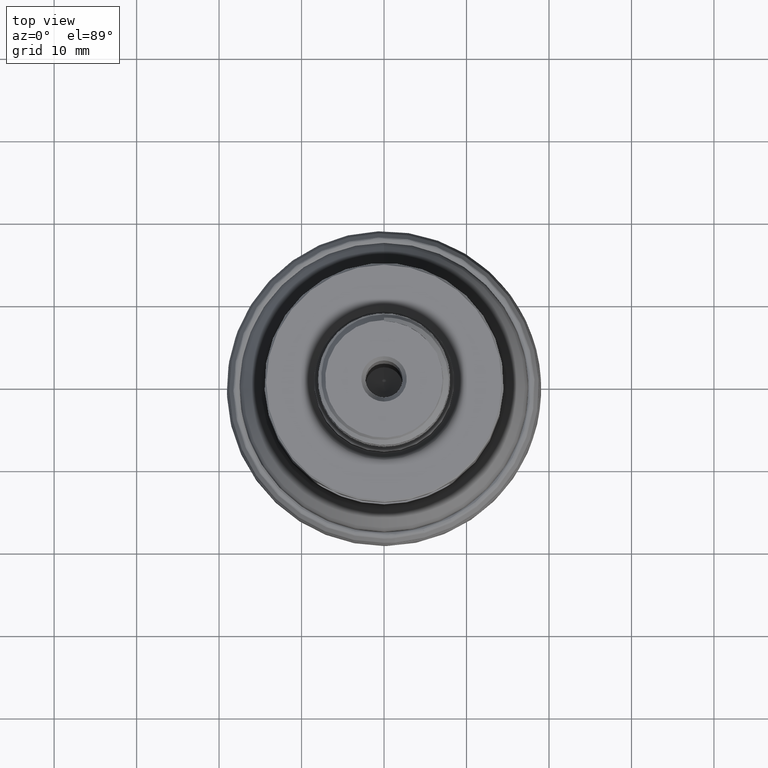
[diagram: clean part render]
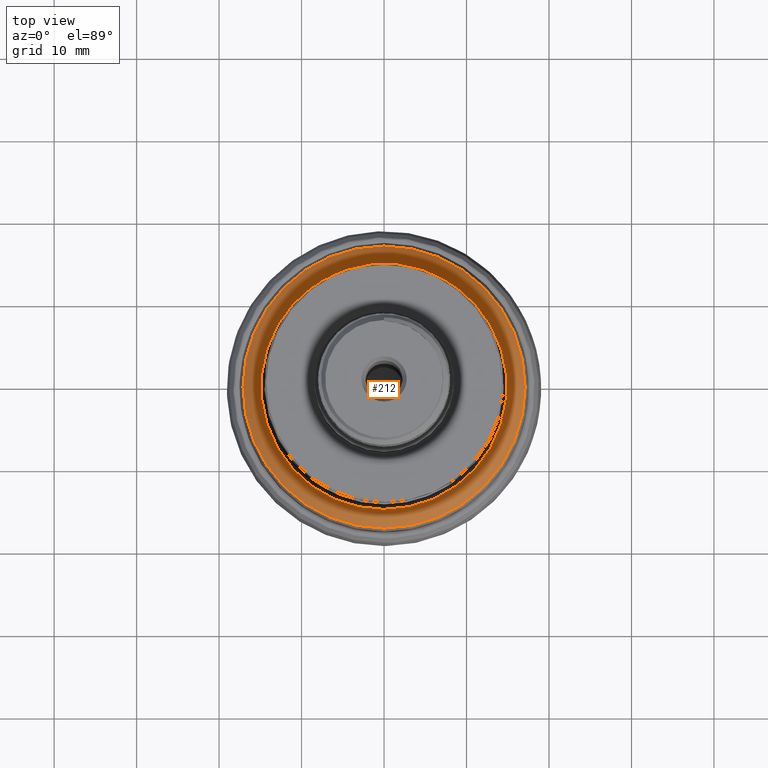
[diagram: same view with one face highlighted and labeled with its STEP entity id]
A machine part, top view. The second image highlights one B-rep face of the part: STEP entity #212.
In plain terms, the highlighted conical surface has half-angle 30 deg.
Its self-contained STEP definition (entity closure, byte-faithful):
#184=CONICAL_SURFACE('',#1043,14.5,30.);
#212=ADVANCED_FACE('',(#340,#341),#184,.T.);
#340=FACE_BOUND('',#442,.T.);
#341=FACE_BOUND('',#443,.T.);
#442=EDGE_LOOP('',(#573));
#443=EDGE_LOOP('',(#574));
#573=ORIENTED_EDGE('',*,*,#839,.T.);
#574=ORIENTED_EDGE('',*,*,#840,.T.);
#759=VERTEX_POINT('',#1785);
#760=VERTEX_POINT('',#1787);
#839=EDGE_CURVE('',#759,#759,#920,.T.);
#840=EDGE_CURVE('',#760,#760,#921,.T.);
#920=CIRCLE('',#1041,17.0980762113533);
#921=CIRCLE('',#1042,14.9019237886467);
#1041=AXIS2_PLACEMENT_3D('',#1784,#1171,#1172);
#1042=AXIS2_PLACEMENT_3D('',#1786,#1173,#1174);
#1043=AXIS2_PLACEMENT_3D('',#1788,#1175,#1176);
#1171=DIRECTION('',(0.,1.17145536458252E-15,1.));
#1172=DIRECTION('',(0.,-1.,1.21748677771708E-15));
#1173=DIRECTION('',(0.,-1.17145536458252E-15,-1.));
#1174=DIRECTION('',(0.,1.,-1.16409364359952E-15));
#1175=DIRECTION('',(0.,-1.17145536458252E-15,-1.));
#1176=DIRECTION('',(0.,1.,-1.06102832252393E-15));
#1784=CARTESIAN_POINT('',(0.,1.60444312297196E-14,13.6961524227066));
#1785=CARTESIAN_POINT('',(0.,-17.0980762113533,13.6961524227067));
#1786=CARTESIAN_POINT('',(0.,2.05004688801942E-14,17.5));
#1787=CARTESIAN_POINT('',(0.,14.9019237886467,17.5));
#1788=CARTESIAN_POINT('',(0.,2.1315980370341E-14,18.1961524227066));